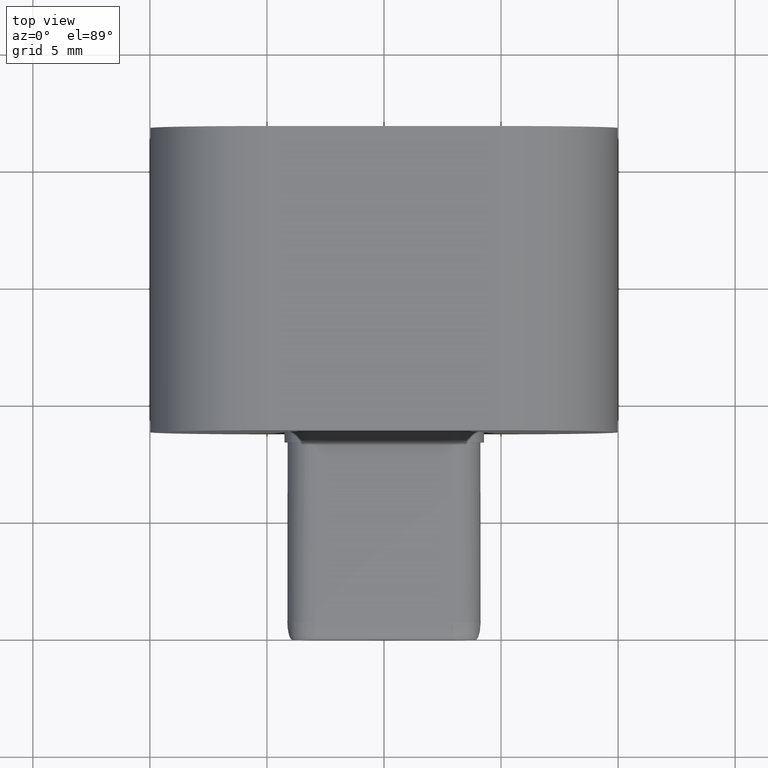
[diagram: clean part render]
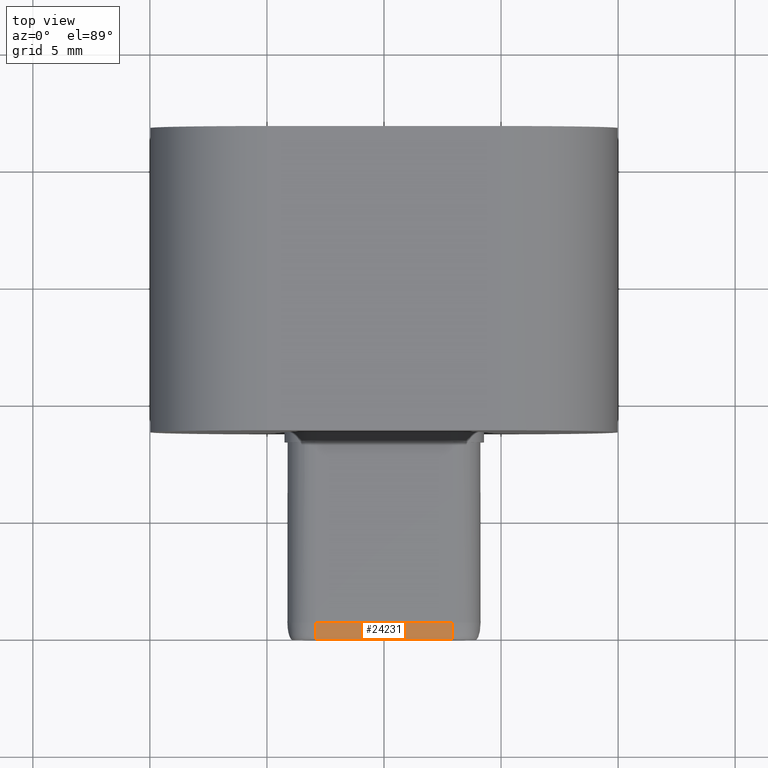
[diagram: same view with one face highlighted and labeled with its STEP entity id]
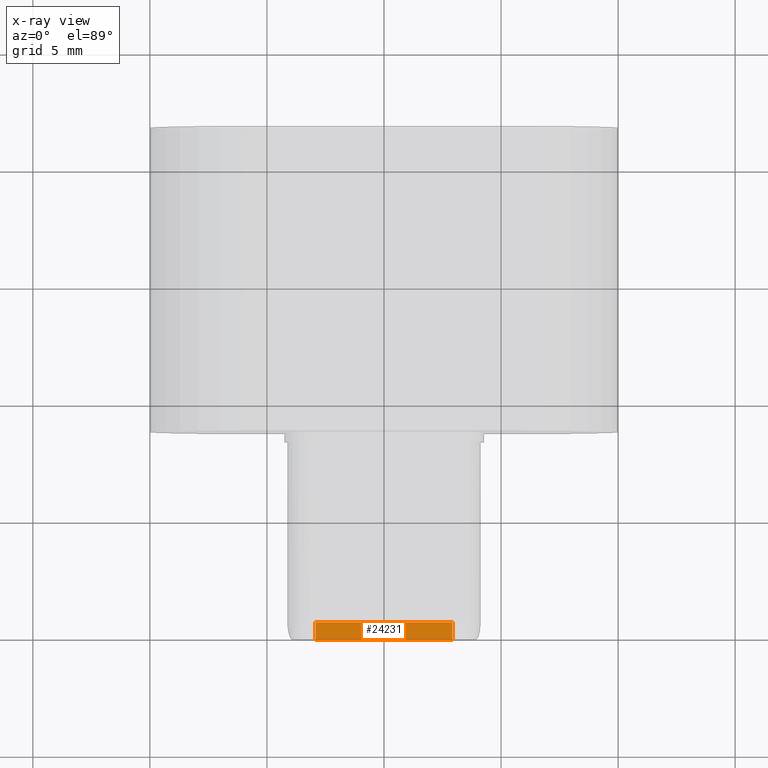
[diagram: x-ray of the same camera — body ghosted, the highlighted face saturated]
A machine part, top view. The second image highlights one B-rep face of the part: STEP entity #24231.
The next image is the same camera in x-ray: the body ghosted, the highlighted face saturated — about 0% of this face is hidden behind the body in this view.
In plain terms, the highlighted face is a freeform B-spline surface patch.
Its self-contained STEP definition (entity closure, byte-faithful):
#28=(
BOUNDED_SURFACE()
B_SPLINE_SURFACE(2,1,((#38927,#38928),(#38929,#38930),(#38931,#38932)),
 .UNSPECIFIED.,.F.,.F.,.F.)
B_SPLINE_SURFACE_WITH_KNOTS((3,3),(2,2),(0.,1.),(0.,0.840960000000569),
 .UNSPECIFIED.)
GEOMETRIC_REPRESENTATION_ITEM()
RATIONAL_B_SPLINE_SURFACE(((1.,1.),(0.709524247319611,0.709524247319611),
(1.,1.)))
REPRESENTATION_ITEM('')
SURFACE()
);
#90=ELLIPSE('',#25748,0.733457360308132,0.226548918116577);
#91=ELLIPSE('',#25749,0.733457360308619,0.226548918116026);
#2649=FACE_OUTER_BOUND('',#4092,.T.);
#4092=EDGE_LOOP('',(#19692,#19693,#19694,#19695));
#6217=LINE('',#38368,#8782);
#6391=LINE('',#38912,#8956);
#8782=VECTOR('',#29371,10.);
#8956=VECTOR('',#29779,10.);
#11109=VERTEX_POINT('',#38360);
#11110=VERTEX_POINT('',#38367);
#11122=VERTEX_POINT('',#38474);
#11241=VERTEX_POINT('',#38876);
#13990=EDGE_CURVE('',#11109,#11110,#6217,.T.);
#14210=EDGE_CURVE('',#11241,#11122,#6391,.T.);
#14212=EDGE_CURVE('',#11122,#11110,#90,.T.);
#14213=EDGE_CURVE('',#11241,#11109,#91,.T.);
#19692=ORIENTED_EDGE('',*,*,#14212,.T.);
#19693=ORIENTED_EDGE('',*,*,#13990,.F.);
#19694=ORIENTED_EDGE('',*,*,#14213,.F.);
#19695=ORIENTED_EDGE('',*,*,#14210,.T.);
#24231=ADVANCED_FACE('',(#2649),#28,.T.);
#25748=AXIS2_PLACEMENT_3D('',#38926,#29782,#29783);
#25749=AXIS2_PLACEMENT_3D('',#38933,#29784,#29785);
#29371=DIRECTION('',(1.,-2.37633352873377E-17,2.37633352873377E-17));
#29779=DIRECTION('',(1.,-1.3181522083886E-13,0.));
#29782=DIRECTION('center_axis',(-1.,-1.09107322384806E-13,1.05531597651717E-13));
#29783=DIRECTION('ref_axis',(-1.05355101897294E-13,-0.00161637085087313,
-0.999998693671783));
#29784=DIRECTION('center_axis',(-1.,1.36613910650308E-14,4.97124606438983E-15));
#29785=DIRECTION('ref_axis',(-4.99332144461378E-15,-0.00161637085109738,
-0.999998693671783));
#38360=CARTESIAN_POINT('',(-2.919999999999,1.20000000000039,-0.729982876511495));
#38367=CARTESIAN_POINT('',(2.92000000000487,1.20000000000039,-0.729982876511495));
#38368=CARTESIAN_POINT('',(-2.919999999999,1.20000000000039,-0.729982876511495));
#38474=CARTESIAN_POINT('',(2.92000000000497,0.975000000000699,0.));
#38876=CARTESIAN_POINT('',(-2.919999999999,0.975000000001469,0.));
#38912=CARTESIAN_POINT('',(-2.919999999999,0.975000000001469,0.));
#38926=CARTESIAN_POINT('Origin',(2.92000000000489,0.973448275862664,-0.73345485214319));
#38927=CARTESIAN_POINT('Ctrl Pts',(-2.919999999999,1.20000000000039,-0.729982876511495));
#38928=CARTESIAN_POINT('Ctrl Pts',(5.48960000000669,1.20000000000039,-0.729982876511495));
#38929=CARTESIAN_POINT('Ctrl Pts',(-2.919999999999,1.20000000000039,-0.00154113204058276));
#38930=CARTESIAN_POINT('Ctrl Pts',(5.48960000000669,1.20000000000039,-0.00154113204058276));
#38931=CARTESIAN_POINT('Ctrl Pts',(-2.919999999999,0.975000000000699,0.));
#38932=CARTESIAN_POINT('Ctrl Pts',(5.48960000000669,0.975000000000699,0.));
#38933=CARTESIAN_POINT('Origin',(-2.919999999999,0.973448275863215,-0.733454852143677));